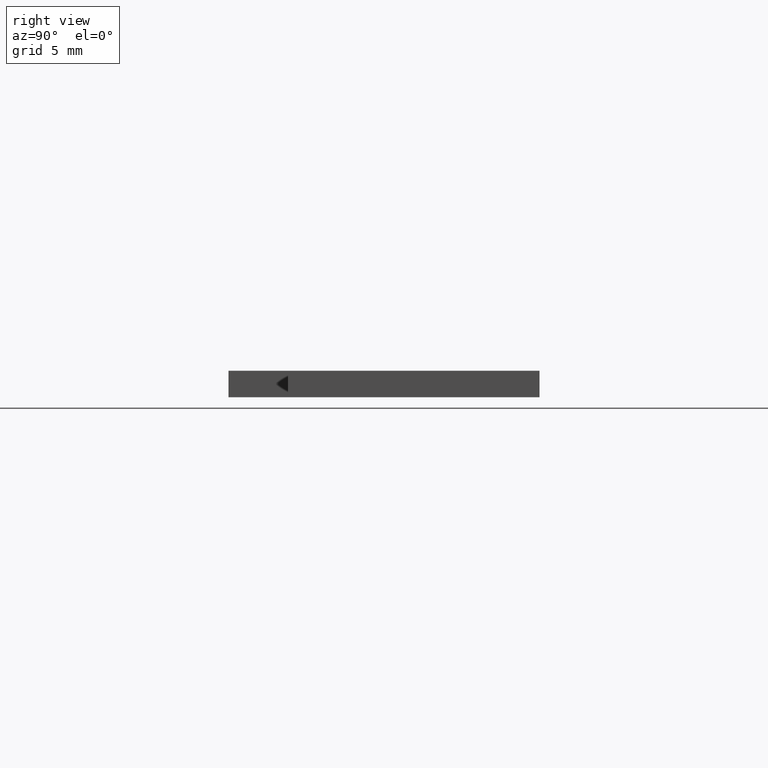
[diagram: clean part render]
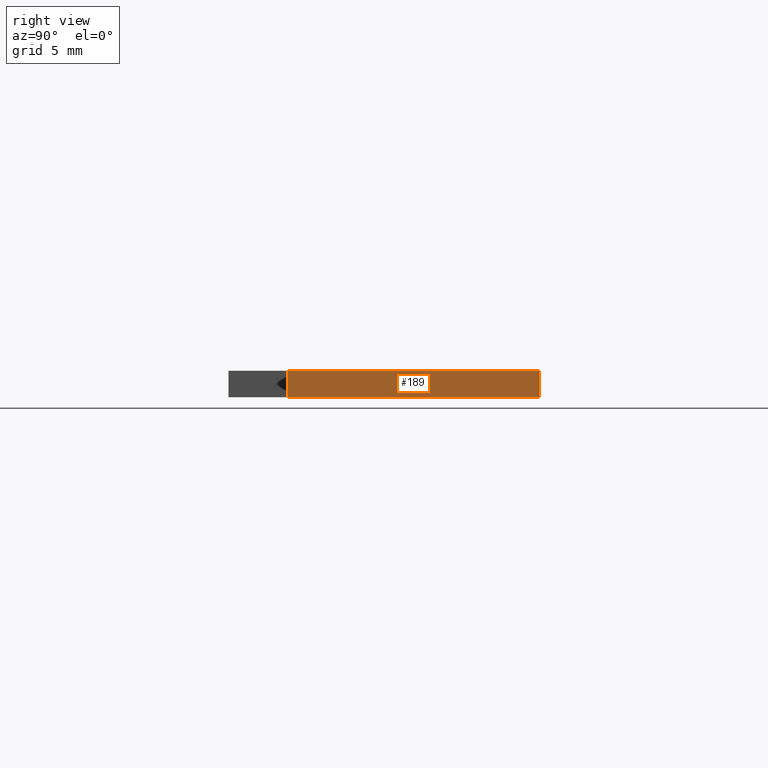
[diagram: same view with one face highlighted and labeled with its STEP entity id]
A machine part, right view. The second image highlights one B-rep face of the part: STEP entity #189.
In plain terms, the highlighted planar face has unit normal (1, 0, 0).
Its self-contained STEP definition (entity closure, byte-faithful):
#23=FACE_OUTER_BOUND('',#33,.T.);
#33=EDGE_LOOP('',(#156,#157,#158,#159));
#36=LINE('',#272,#60);
#56=LINE('',#311,#80);
#57=LINE('',#314,#81);
#58=LINE('',#315,#82);
#60=VECTOR('',#226,10.);
#80=VECTOR('',#258,10.);
#81=VECTOR('',#261,10.);
#82=VECTOR('',#262,10.);
#84=VERTEX_POINT('',#270);
#85=VERTEX_POINT('',#271);
#98=VERTEX_POINT('',#309);
#99=VERTEX_POINT('',#313);
#100=EDGE_CURVE('',#84,#85,#36,.T.);
#120=EDGE_CURVE('',#98,#85,#56,.T.);
#121=EDGE_CURVE('',#98,#99,#57,.T.);
#122=EDGE_CURVE('',#84,#99,#58,.T.);
#156=ORIENTED_EDGE('',*,*,#121,.T.);
#157=ORIENTED_EDGE('',*,*,#122,.F.);
#158=ORIENTED_EDGE('',*,*,#100,.T.);
#159=ORIENTED_EDGE('',*,*,#120,.F.);
#179=PLANE('',#219);
#189=ADVANCED_FACE('',(#23),#179,.T.);
#219=AXIS2_PLACEMENT_3D('',#312,#259,#260);
#226=DIRECTION('',(0.,1.,0.));
#258=DIRECTION('',(0.,0.,-1.));
#259=DIRECTION('center_axis',(1.,0.,0.));
#260=DIRECTION('ref_axis',(0.,0.,-1.));
#261=DIRECTION('',(0.,-1.,0.));
#262=DIRECTION('',(0.,0.,1.));
#270=CARTESIAN_POINT('',(25.,-9.5,-1.));
#271=CARTESIAN_POINT('',(25.,9.5,-1.));
#272=CARTESIAN_POINT('',(25.,9.5,-1.));
#309=CARTESIAN_POINT('',(25.,9.5,1.));
#311=CARTESIAN_POINT('',(25.,9.5,0.));
#312=CARTESIAN_POINT('Origin',(25.,9.5,0.));
#313=CARTESIAN_POINT('',(25.,-9.5,1.));
#314=CARTESIAN_POINT('',(25.,9.5,1.));
#315=CARTESIAN_POINT('',(25.,-9.5,0.));